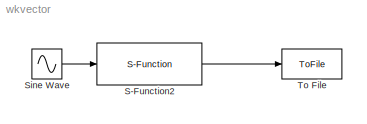
MODEL wkvector
KIND model
CONFIG AbsTol = auto
CONFIG FixedStep = auto
CONFIG MaxStep = auto
CONFIG MinStep = auto
CONFIG RelTol = 1e-3
CONFIG Solver = FixedStepDiscrete
CONFIG SolverMode = Auto
CONFIG StartTime = 0.0
CONFIG StopTime = 0.5
BLOCK [S-Function] S-Function2
  FunctionName = buffer_workvector
  MaskCallbackString = ||
  MaskDisplay = disp('Buffer')
  MaskEnableString = on,on,on
  MaskIconFrame = on
  MaskIconOpaque = on
  MaskIconRotate = none
  MaskIconUnits = autoscale
  MaskPromptString = Enter the size of buffer:|Enter the initailization value of buffer:|Enter the width of output channel:
  MaskStyleString = edit,edit,edit
  MaskToolTipString = on,on,on
  MaskTunableValueString = on,on,on
  MaskValueString = 20|0|6
  MaskVariableAliases = ,,
  MaskVariables = bufsize=@1;initvalue=@2;outsize=@3;
  MaskVisibilityString = on,on,on
  Parameters = bufsize,initvalue,outsize
  PortCounts = []
  Ports = [1, 1]
  SFunctionModules = ''
BLOCK [Sin] Sine Wave
  Amplitude = 5
  Bias = 0
  Frequency = 1*pi/180
  Offset = 0
  Phase = 0
  SampleTime = 0.001
  Samples = 100
  SineType = Sample-based
  VectorParams1D = on
BLOCK [ToFile] To File
  Decimation = 1
  Filename = test.mat
  MatrixName = out
  SampleTime = 0.001
LINE S-Function2:1 -> To File:1
LINE Sine Wave:1 -> S-Function2:1
